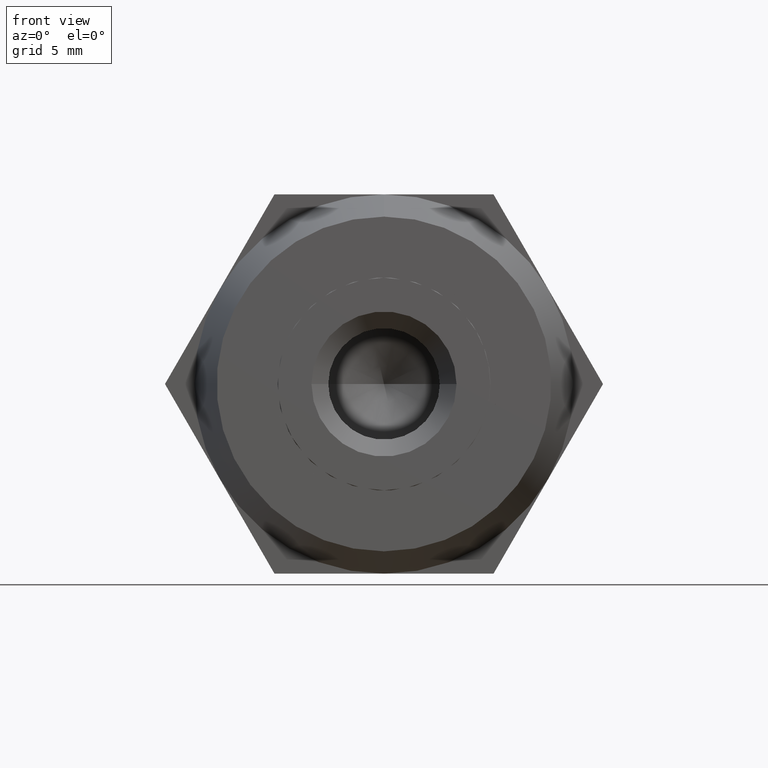
[diagram: clean part render]
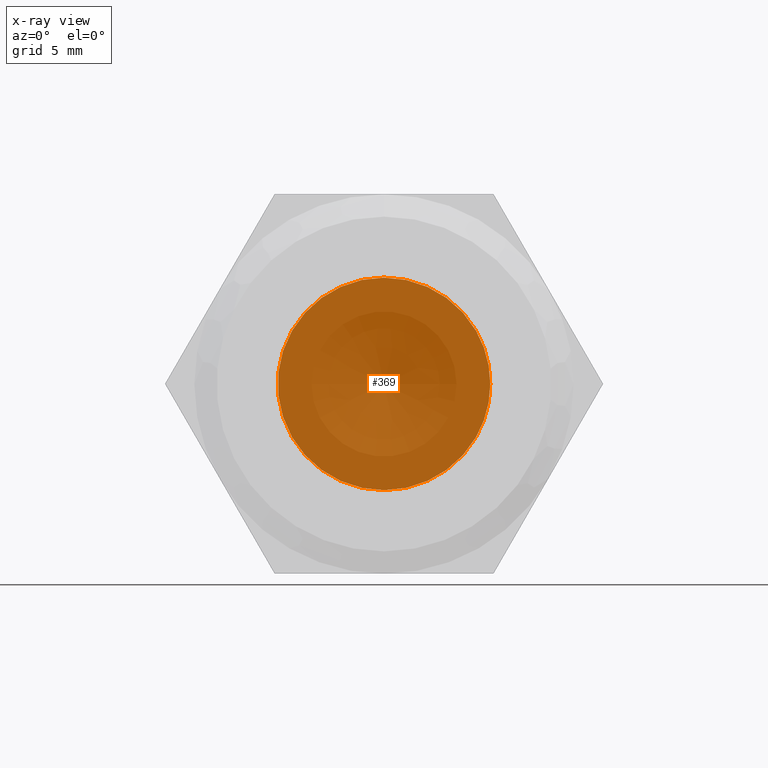
[diagram: x-ray — body ghosted, one internal face saturated and labeled with its STEP entity id]
A machine part, front view, then the same camera in x-ray: the body is ghosted and one INTERNAL B-rep face — a face not visible from any outside direction — is saturated and labeled: STEP entity #369.
In plain terms, the highlighted planar face has unit normal (0, 1, 0).
Its self-contained STEP definition (entity closure, byte-faithful):
#91 = AXIS2_PLACEMENT_3D ( 'NONE', #1025, #3350, #1616 ) ;
#109 = CARTESIAN_POINT ( 'NONE',  ( 4.762500000000000200, 3.510000000000000200, 0.0000000000000000000 ) ) ;
#151 = AXIS2_PLACEMENT_3D ( 'NONE', #3504, #2382, #1757 ) ;
#166 = CIRCLE ( 'NONE', #3134, 4.762500000000000200 ) ;
#203 = DIRECTION ( 'NONE',  ( 1.000000000000000000, 0.0000000000000000000, -3.552713678800500900E-015 ) ) ;
#226 = ORIENTED_EDGE ( 'NONE', *, *, #937, .F. ) ;
#338 = ORIENTED_EDGE ( 'NONE', *, *, #2474, .F. ) ;
#369 = ADVANCED_FACE ( 'NONE', ( #668 ), #553, .T. ) ;
#553 = PLANE ( 'NONE',  #3004 ) ;
#595 = ORIENTED_EDGE ( 'NONE', *, *, #2834, .F. ) ;
#668 = FACE_OUTER_BOUND ( 'NONE', #676, .T. ) ;
#676 = EDGE_LOOP ( 'NONE', ( #2665, #226, #338, #2052, #595, #1156, #851 ) ) ;
#696 = DIRECTION ( 'NONE',  ( -0.0000000000000000000, -1.000000000000000000, -0.0000000000000000000 ) ) ;
#746 = EDGE_CURVE ( 'NONE', #3259, #2128, #166, .T. ) ;
#753 = DIRECTION ( 'NONE',  ( 1.000000000000000000, 0.0000000000000000000, -1.776356839400250500E-015 ) ) ;
#851 = ORIENTED_EDGE ( 'NONE', *, *, #1096, .F. ) ;
#937 = EDGE_CURVE ( 'NONE', #3490, #3259, #2920, .T. ) ;
#951 = CARTESIAN_POINT ( 'NONE',  ( 0.0000000000000000000, 3.510000000000000200, 0.0000000000000000000 ) ) ;
#1025 = CARTESIAN_POINT ( 'NONE',  ( 0.0000000000000000000, 3.510000000000000200, 0.0000000000000000000 ) ) ;
#1028 = EDGE_CURVE ( 'NONE', #1557, #2501, #3794, .T. ) ;
#1093 = CARTESIAN_POINT ( 'NONE',  ( 0.0000000000000000000, 3.510000000000000200, 0.0000000000000000000 ) ) ;
#1096 = EDGE_CURVE ( 'NONE', #2128, #1391, #2723, .T. ) ;
#1156 = ORIENTED_EDGE ( 'NONE', *, *, #3753, .F. ) ;
#1169 = DIRECTION ( 'NONE',  ( -0.0000000000000000000, 1.000000000000000000, 0.0000000000000000000 ) ) ;
#1288 = CARTESIAN_POINT ( 'NONE',  ( 0.0000000000000000000, 3.510000000000000200, 0.0000000000000000000 ) ) ;
#1391 = VERTEX_POINT ( 'NONE', #2196 ) ;
#1471 = AXIS2_PLACEMENT_3D ( 'NONE', #951, #3850, #3038 ) ;
#1550 = CARTESIAN_POINT ( 'NONE',  ( -4.124445985523444800, 3.509999999999425100, 2.381250000000000100 ) ) ;
#1557 = VERTEX_POINT ( 'NONE', #1550 ) ;
#1616 = DIRECTION ( 'NONE',  ( 1.000000000000000000, 0.0000000000000000000, 0.0000000000000000000 ) ) ;
#1643 = CIRCLE ( 'NONE', #1471, 4.762500000000000200 ) ;
#1658 = AXIS2_PLACEMENT_3D ( 'NONE', #2485, #696, #3078 ) ;
#1757 = DIRECTION ( 'NONE',  ( 1.000000000000000000, 0.0000000000000000000, 0.0000000000000000000 ) ) ;
#2052 = ORIENTED_EDGE ( 'NONE', *, *, #1028, .F. ) ;
#2128 = VERTEX_POINT ( 'NONE', #109 ) ;
#2196 = CARTESIAN_POINT ( 'NONE',  ( 4.124445985523419900, 3.510000000000000200, 2.381250000000000100 ) ) ;
#2382 = DIRECTION ( 'NONE',  ( -0.0000000000000000000, -1.000000000000000000, -0.0000000000000000000 ) ) ;
#2474 = EDGE_CURVE ( 'NONE', #2501, #3490, #3356, .T. ) ;
#2485 = CARTESIAN_POINT ( 'NONE',  ( 0.0000000000000000000, 3.510000000000000200, 0.0000000000000000000 ) ) ;
#2501 = VERTEX_POINT ( 'NONE', #3643 ) ;
#2535 = DIRECTION ( 'NONE',  ( -0.0000000000000000000, -1.000000000000000000, -0.0000000000000000000 ) ) ;
#2570 = DIRECTION ( 'NONE',  ( -0.0000000000000000000, -1.000000000000000000, -0.0000000000000000000 ) ) ;
#2640 = CARTESIAN_POINT ( 'NONE',  ( 4.124445985523424300, 3.509999999999390500, -2.381249999999965000 ) ) ;
#2665 = ORIENTED_EDGE ( 'NONE', *, *, #746, .F. ) ;
#2723 = CIRCLE ( 'NONE', #2796, 4.762500000000000200 ) ;
#2796 = AXIS2_PLACEMENT_3D ( 'NONE', #1288, #3363, #3041 ) ;
#2834 = EDGE_CURVE ( 'NONE', #3291, #1557, #1643, .T. ) ;
#2920 = CIRCLE ( 'NONE', #1658, 4.762500000000000200 ) ;
#3004 = AXIS2_PLACEMENT_3D ( 'NONE', #3528, #1169, #3261 ) ;
#3031 = AXIS2_PLACEMENT_3D ( 'NONE', #1093, #2535, #753 ) ;
#3038 = DIRECTION ( 'NONE',  ( 1.000000000000000000, 0.0000000000000000000, 0.0000000000000000000 ) ) ;
#3041 = DIRECTION ( 'NONE',  ( 1.000000000000000000, 0.0000000000000000000, 0.0000000000000000000 ) ) ;
#3078 = DIRECTION ( 'NONE',  ( 1.000000000000000000, 0.0000000000000000000, 1.776356839400250500E-015 ) ) ;
#3134 = AXIS2_PLACEMENT_3D ( 'NONE', #3746, #2570, #203 ) ;
#3259 = VERTEX_POINT ( 'NONE', #2640 ) ;
#3261 = DIRECTION ( 'NONE',  ( 1.000000000000000000, 0.0000000000000000000, 0.0000000000000000000 ) ) ;
#3291 = VERTEX_POINT ( 'NONE', #3496 ) ;
#3308 = CIRCLE ( 'NONE', #151, 4.762500000000000200 ) ;
#3350 = DIRECTION ( 'NONE',  ( -0.0000000000000000000, -1.000000000000000000, -0.0000000000000000000 ) ) ;
#3356 = CIRCLE ( 'NONE', #91, 4.762500000000000200 ) ;
#3363 = DIRECTION ( 'NONE',  ( -0.0000000000000000000, -1.000000000000000000, -0.0000000000000000000 ) ) ;
#3490 = VERTEX_POINT ( 'NONE', #3724 ) ;
#3496 = CARTESIAN_POINT ( 'NONE',  ( -6.938893903907230000E-015, 3.510000000000000200, 4.762500000000000200 ) ) ;
#3504 = CARTESIAN_POINT ( 'NONE',  ( 0.0000000000000000000, 3.510000000000000200, 0.0000000000000000000 ) ) ;
#3528 = CARTESIAN_POINT ( 'NONE',  ( 0.0000000000000000000, 3.510000000000000200, 0.0000000000000000000 ) ) ;
#3643 = CARTESIAN_POINT ( 'NONE',  ( -4.124445985523409200, 3.509999999999425100, -2.381250000000065400 ) ) ;
#3724 = CARTESIAN_POINT ( 'NONE',  ( 0.0000000000000000000, 3.510000000000000200, -4.762500000000000200 ) ) ;
#3746 = CARTESIAN_POINT ( 'NONE',  ( 0.0000000000000000000, 3.510000000000000200, 0.0000000000000000000 ) ) ;
#3753 = EDGE_CURVE ( 'NONE', #1391, #3291, #3308, .T. ) ;
#3794 = CIRCLE ( 'NONE', #3031, 4.762500000000000200 ) ;
#3850 = DIRECTION ( 'NONE',  ( -0.0000000000000000000, -1.000000000000000000, -0.0000000000000000000 ) ) ;